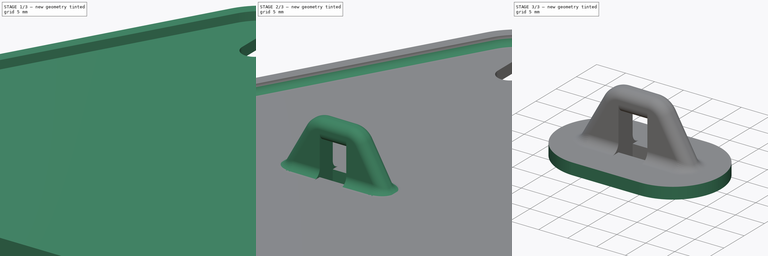
[diagram: build sequence overview — one tinted view per stage of 3, left to right]
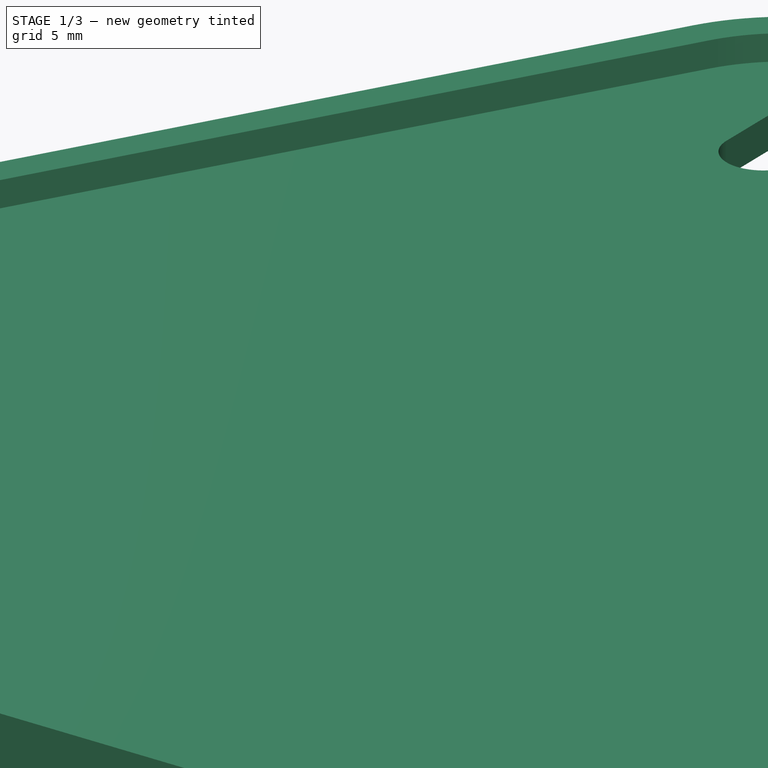
[diagram: stage 1 of 3 — iso view after this stage's code; geometry added in this stage tinted green]
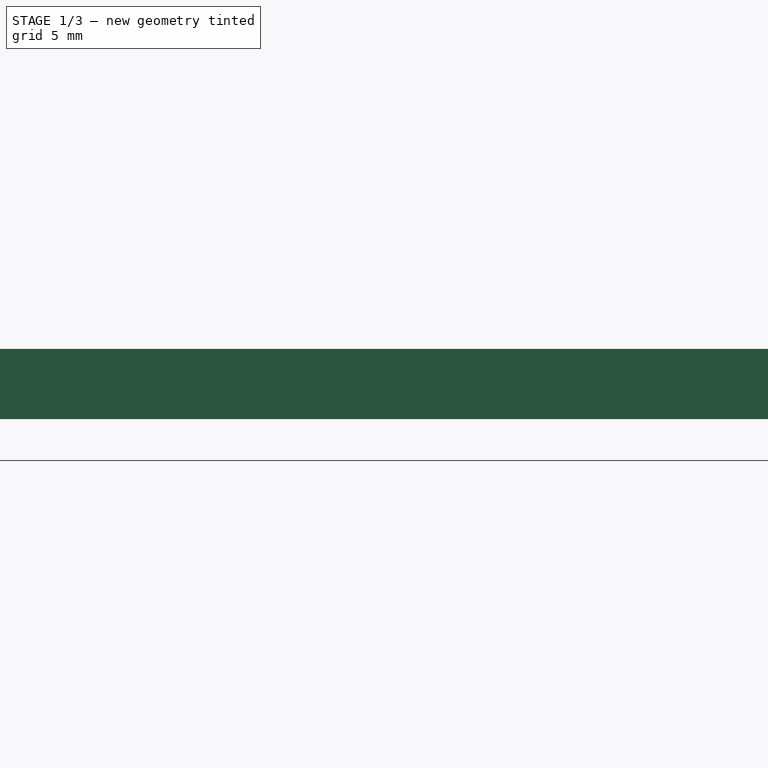
[diagram: stage 1 of 3 — front view after this stage's code; geometry added in this stage tinted green]
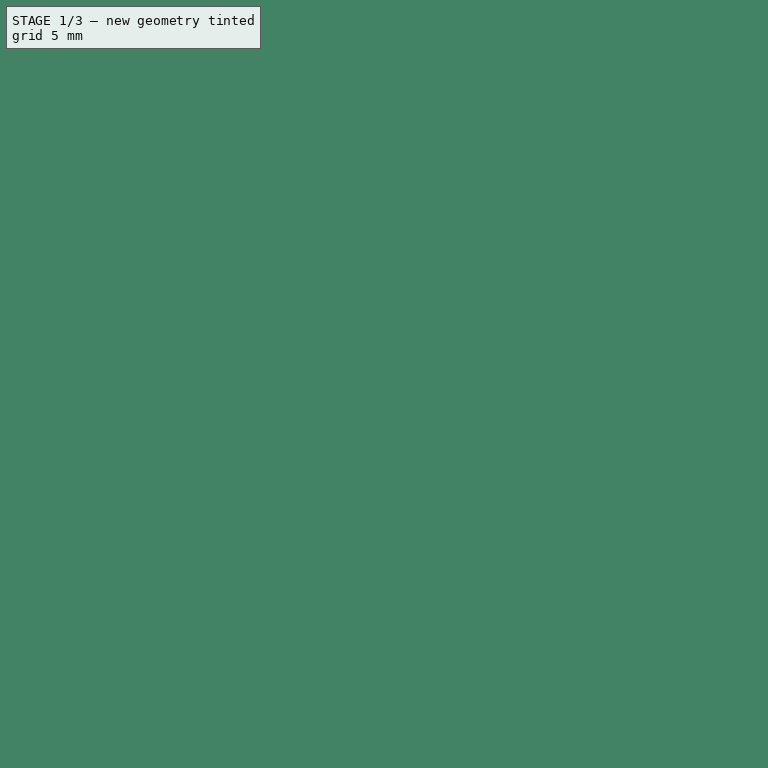
[diagram: stage 1 of 3 — top view after this stage's code; geometry added in this stage tinted green]
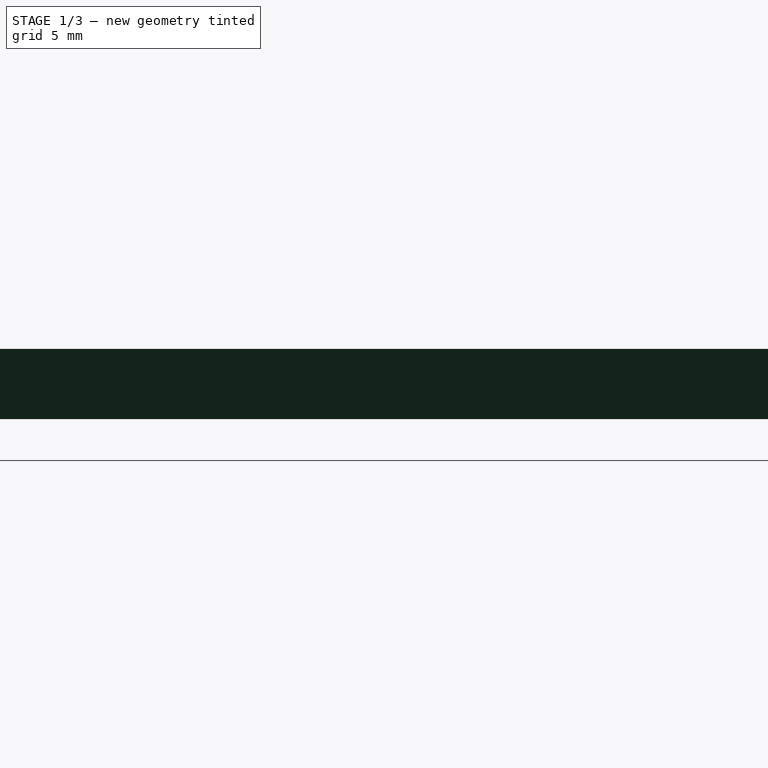
[diagram: stage 1 of 3 — right view after this stage's code; geometry added in this stage tinted green]
FCSTD DOCUMENT  (FreeCAD 0.18.4R)
Label: LivingRoomMainLampAdapter
License: All rights reserved
LicenseURL: http://en.wikipedia.org/wiki/All_rights_reserved
objects: Sketcher::SketchObject×6, PartDesign::Pad×3, PartDesign::Pocket×2, PartDesign::Body×2, PartDesign::Fillet×1, PartDesign::FeatureBase×1
note: 20 computed .brp shape members not serialized (recipe doc carries the construction recipe); baked Part::Feature solids carry a one-line shape summary decoded from their .brp

FEATURE [Sketcher::SketchObject] Sketch  label="LRML_Template"
  MapMode = 5
  Support = -> [XY_Plane]
  expr: Constraints.Rc = Constraints.Ri + Constraints.Dist / 2 + 5mm
  expr: Constraints[84] = Constraints.Rc + 2mm
  sketch-geometry (43):
    g0: LineSegment [constr] StartX=-41.5 StartY=-23.96 StartZ=0 EndX=7.1e-15 EndY=47.9201 EndZ=0
    g1: LineSegment [constr] StartX=3.7e-15 StartY=47.9201 StartZ=0 EndX=41.5 EndY=-23.96 EndZ=0
    g2: LineSegment [constr] StartX=41.5 StartY=-23.96 StartZ=0 EndX=-41.5 EndY=-23.96 EndZ=0
    g3: Circle [constr] CenterX=0 CenterY=0 CenterZ=0 NormalX=0 NormalY=0 NormalZ=1 AngleXU=0 Radius=23.96
    g4: Circle [constr] CenterX=0 CenterY=0 CenterZ=0 NormalX=0 NormalY=0 NormalZ=1 AngleXU=0 Radius=63.5
    g5: LineSegment StartX=-49.554 StartY=-19.31 StartZ=0 EndX=-8.05404 EndY=52.5701 EndZ=0
    g6: LineSegment StartX=8.05404 StartY=52.5701 StartZ=0 EndX=49.554 EndY=-19.31 EndZ=0
    g7: LineSegment StartX=41.5 StartY=-33.26 StartZ=0 EndX=-41.5 EndY=-33.26 EndZ=0
    g8: ArcOfCircle CenterX=-41.5 CenterY=-23.96 CenterZ=0 NormalX=0 NormalY=0 NormalZ=1 AngleXU=0 Radius=9.3 StartAngle=2.61799 EndAngle=4.71239
    g9: ArcOfCircle CenterX=3.7e-15 CenterY=47.9201 CenterZ=0 NormalX=0 NormalY=0 NormalZ=1 AngleXU=0 Radius=9.3 StartAngle=0.523599 EndAngle=2.61799
    g10: ArcOfCircle CenterX=41.5 CenterY=-23.96 CenterZ=0 NormalX=0 NormalY=0 NormalZ=1 AngleXU=0 Radius=9.3 StartAngle=4.71239 EndAngle=6.80678
    g11: LineSegment [constr] StartX=3.7e-15 StartY=47.9201 StartZ=0 EndX=8.05404 EndY=52.5701 EndZ=0
    g12: LineSegment [constr] StartX=3.7e-15 StartY=47.9201 StartZ=0 EndX=-8.05404 EndY=52.5701 EndZ=0
    g13: LineSegment [constr] StartX=41.5 StartY=-23.96 StartZ=0 EndX=49.554 EndY=-19.31 EndZ=0
    g14: LineSegment [constr] StartX=41.5 StartY=-23.96 StartZ=0 EndX=41.5 EndY=-33.26 EndZ=0
    g15: LineSegment [constr] StartX=-41.5 StartY=-23.96 StartZ=0 EndX=-41.5 EndY=-33.26 EndZ=0
    g16: LineSegment [constr] StartX=-49.554 StartY=-19.31 StartZ=0 EndX=-41.5 EndY=-23.96 EndZ=0
    g17: LineSegment StartX=-9.78609 StartY=53.5701 StartZ=0 EndX=-51.2861 EndY=-18.31 EndZ=0
    g18: LineSegment StartX=-41.5 StartY=-35.26 StartZ=0 EndX=41.5 EndY=-35.26 EndZ=0
    g19: LineSegment StartX=51.2861 StartY=-18.31 StartZ=0 EndX=9.78609 EndY=53.5701 EndZ=0
    g20: ArcOfCircle CenterX=3.7e-15 CenterY=47.9201 CenterZ=0 NormalX=0 NormalY=0 NormalZ=1 AngleXU=0 Radius=11.3 StartAngle=0.523599 EndAngle=2.61799
    g21: ArcOfCircle CenterX=41.5 CenterY=-23.96 CenterZ=0 NormalX=0 NormalY=0 NormalZ=1 AngleXU=0 Radius=11.3 StartAngle=4.71239 EndAngle=6.80678
    g22: ArcOfCircle CenterX=-41.5 CenterY=-23.96 CenterZ=0 NormalX=0 NormalY=0 NormalZ=1 AngleXU=0 Radius=11.3 StartAngle=2.61799 EndAngle=4.71239
    g23: ArcOfCircle CenterX=3.8e-15 CenterY=49.9201 CenterZ=0 NormalX=0 NormalY=0 NormalZ=1 AngleXU=0 Radius=2.3 StartAngle=-9e-16 EndAngle=3.14159
    g24: ArcOfCircle CenterX=3.5e-15 CenterY=45.9201 CenterZ=0 NormalX=0 NormalY=0 NormalZ=1 AngleXU=0 Radius=2.3 StartAngle=3.14159 EndAngle=6.28319
    g25: LineSegment StartX=-2.3 StartY=49.9201 StartZ=0 EndX=-2.3 EndY=45.9201 EndZ=0
    g26: LineSegment StartX=2.3 StartY=49.9201 StartZ=0 EndX=2.3 EndY=45.9201 EndZ=0
    g27: LineSegment [constr] StartX=3.8e-15 StartY=49.9201 StartZ=0 EndX=3.5e-15 EndY=45.9201 EndZ=0
    g28: LineSegment [constr] StartX=43.2321 StartY=-24.96 StartZ=0 EndX=39.7679 EndY=-22.96 EndZ=0
    g29: ArcOfCircle CenterX=39.7679 CenterY=-22.96 CenterZ=0 NormalX=0 NormalY=0 NormalZ=1 AngleXU=0 Radius=2.3 StartAngle=1.0472 EndAngle=4.18879
    g30: ArcOfCircle CenterX=43.2321 CenterY=-24.96 CenterZ=0 NormalX=0 NormalY=0 NormalZ=1 AngleXU=0 Radius=2.3 StartAngle=4.18879 EndAngle=7.33038
    g31: LineSegment StartX=40.9179 StartY=-20.9682 StartZ=0 EndX=44.3821 EndY=-22.9682 EndZ=0
    g32: LineSegment StartX=38.6179 StartY=-24.9519 StartZ=0 EndX=42.0821 EndY=-26.9519 EndZ=0
    g33: LineSegment [constr] StartX=-43.2321 StartY=-24.96 StartZ=0 EndX=-39.7679 EndY=-22.96 EndZ=0
    g34: ArcOfCircle CenterX=-39.7679 CenterY=-22.96 CenterZ=0 NormalX=0 NormalY=0 NormalZ=1 AngleXU=0 Radius=2.3 StartAngle=5.23599 EndAngle=8.37758
    g35: ArcOfCircle CenterX=-43.2321 CenterY=-24.96 CenterZ=0 NormalX=0 NormalY=0 NormalZ=1 AngleXU=0 Radius=2.3 StartAngle=2.0944 EndAngle=5.23599
    g36: LineSegment StartX=-44.3821 StartY=-22.9682 StartZ=0 EndX=-40.9179 EndY=-20.9682 EndZ=0
    g37: LineSegment StartX=-42.0821 StartY=-26.9519 StartZ=0 EndX=-38.6179 EndY=-24.9519 EndZ=0
    g38: LineSegment StartX=-2.5 StartY=1.75 StartZ=0 EndX=2.5 EndY=1.75 EndZ=0
    g39: LineSegment StartX=2.5 StartY=1.75 StartZ=0 EndX=2.5 EndY=-1.75 EndZ=0
    g40: LineSegment StartX=2.5 StartY=-1.75 StartZ=0 EndX=-2.5 EndY=-1.75 EndZ=0
    g41: LineSegment StartX=-2.5 StartY=-1.75 StartZ=0 EndX=-2.5 EndY=1.75 EndZ=0
    g42: LineSegment [constr] StartX=-3e-16 StartY=1.75 StartZ=0 EndX=-3e-16 EndY=-1.75 EndZ=0
  constraints (113):
    c: Coincident(g0,g1)
    c: Coincident(g1,g2)
    c: Coincident(g2,g0)
    c: Equal(g0,g2)
    c: Equal(g2,g1)
    c: Distance(g0) = 83
    c: Tangent(g1,g3)
    c: Tangent(g3,g0)
    c: Tangent(g3,g2)
    c: Horizontal(g2)
    c: Coincident(g4,g3)
    c: Diameter(g4) = 127
    c: Coincident(g8,g0)
    c: Coincident(g8,g7)
    c: Coincident(g8,g5)
    c: Coincident(g9,g0)
    c: Coincident(g9,g5)
    c: Coincident(g9,g6)
    c: Coincident(g10,g1)
    c: Coincident(g10,g6)
    c: Coincident(g10,g7)
    c: Coincident(g11,g9)
    c: Coincident(g11,g6)
    c: Coincident(g12,g9)
    c: Coincident(g12,g5)
    c: Coincident(g13,g10)
    c: Coincident(g13,g6)
    c: Coincident(g14,g10)
    c: Coincident(g14,g7)
    c: Coincident(g15,g8)
    c: Coincident(g15,g7)
    c: Coincident(g16,g5)
    c: Coincident(g16,g8)
    c: Equal(g11,g12)
    c: Equal(g12,g13)
    c: Equal(g13,g14)
    c: Equal(g14,g15)
    c: Equal(g15,g16)
    c: Perpendicular(g0,g16)
    c: Perpendicular(g0,g12)
    c: Perpendicular(g1,g11)
    c: Perpendicular(g1,g13)
    c: Perpendicular(g2,g14)
    c: Perpendicular(g2,g15)
    c: Horizontal(g18)
    c: PointOnObject(g19,g11)
    c: PointOnObject(g19,g13)
    c: PointOnObject(g18,g14)
    c: PointOnObject(g18,g15)
    c: PointOnObject(g17,g16)
    c: PointOnObject(g17,g12)
    c: Coincident(g20,g0)
    c: Coincident(g20,g17)
    c: Coincident(g20,g19)
    c: Coincident(g21,g1)
    c: Coincident(g21,g18)
    c: Coincident(g21,g19)
    c: Coincident(g22,g0)
    c: Coincident(g22,g17)
    c: Coincident(g22,g18)
    c: Equal(g20,g21)
    c: Tangent(g23,g26) = 1.5708
    c: Tangent(g23,g25) = -1.5708
    c: Tangent(g25,g24) = -1.5708
    c: Tangent(g26,g24) = 1.5708
    c: Equal(g23,g24)
    c: Coincident(g27,g23)
    c: Coincident(g27,g24)
    c: Symmetric(g24,g23,g0)
    c: Symmetric(g28,g28,g1)
    c: PointOnObject(g3,g28)
    c: Equal(g25,g26)
    c: PointOnObject(g3,g27)
    c: Equal(g27,g28)
    c: Coincident(g29,g28)
    c: Coincident(g30,g28)
    c: Equal(g32,g31)
    c: Tangent(g30,g31) = 1.5708
    c: Tangent(g30,g32) = -1.5708
    c: Tangent(g29,g32) = -1.5708
    c: Tangent(g29,g31) = 1.5708
    c: Equal(g24,g29)
    c: Equal(g29,g30)
    c: Radius(g8) = 9.3  'Rc'
    c: Radius(g22) = 11.3
    c: Symmetric(g33,g33,g0)
    c: PointOnObject(g3,g33)
    c: Equal(g33,g28)
    c: Coincident(g34,g33)
    c: Coincident(g35,g33)
    c: Tangent(g35,g37) = -1.5708
    c: Tangent(g34,g37) = -1.5708
    c: Tangent(g34,g36) = 1.5708
    c: Tangent(g35,g36) = 1.5708
    c: Equal(g35,g34)
    c: Equal(g34,g30)
    c: Coincident(g38,g39)
    c: Coincident(g39,g40)
    c: Coincident(g40,g41)
    c: Coincident(g41,g38)
    c: Horizontal(g38)
    c: Vertical(g39)
    c: Equal(g41,g39)
    c: Equal(g38,g40)
    c: Symmetric(g40,g38,g3)
    c: PointOnObject(g42,g38)
    c: PointOnObject(g42,g40)
    c: Symmetric(g38,g38,g42)
    c: Distance(g41) = 3.5
    c: Coincident(g3,g-1)  '__ANCHOR__'
    c: DistanceX(g38,g38) = 5
    c: Radius(g34) = 2.3  'Ri'
    c: Distance(g37) = 4  'Dist'
FEATURE [Sketcher::SketchObject] Sketch001  label="LRML_Base"
  ExternalGeometry = -> [Sketch]
  MapMode = 5
  Support = -> [XY_Plane]
  sketch-geometry (18):
    g0: ArcOfCircle CenterX=3.8e-15 CenterY=49.9201 CenterZ=0 NormalX=0 NormalY=0 NormalZ=1 AngleXU=0 Radius=2.3 StartAngle=-9e-16 EndAngle=3.14159
    g1: ArcOfCircle CenterX=3.5e-15 CenterY=45.9201 CenterZ=0 NormalX=0 NormalY=0 NormalZ=1 AngleXU=0 Radius=2.3 StartAngle=3.1416 EndAngle=6.28318
    g2: ArcOfCircle CenterX=4.8e-15 CenterY=47.9201 CenterZ=0 NormalX=0 NormalY=0 NormalZ=1 AngleXU=0 Radius=11.3 StartAngle=0.523599 EndAngle=2.61799
    g3: ArcOfCircle CenterX=41.5 CenterY=-23.96 CenterZ=0 NormalX=0 NormalY=0 NormalZ=1 AngleXU=0 Radius=11.3 StartAngle=4.71239 EndAngle=6.80678
    g4: ArcOfCircle CenterX=-41.5 CenterY=-23.96 CenterZ=0 NormalX=0 NormalY=0 NormalZ=1 AngleXU=0 Radius=11.3 StartAngle=2.61799 EndAngle=4.71239
    g5: LineSegment StartX=-9.78609 StartY=53.5701 StartZ=0 EndX=-51.2861 EndY=-18.31 EndZ=0
    g6: LineSegment StartX=-41.5 StartY=-35.26 StartZ=0 EndX=41.5 EndY=-35.26 EndZ=0
    g7: LineSegment StartX=51.2861 StartY=-18.31 StartZ=0 EndX=9.78609 EndY=53.5701 EndZ=0
    g8: LineSegment StartX=-2.3 StartY=49.9201 StartZ=0 EndX=-2.3 EndY=45.9201 EndZ=0
    g9: LineSegment StartX=2.3 StartY=49.9201 StartZ=0 EndX=2.3 EndY=45.9201 EndZ=0
    g10: ArcOfCircle CenterX=43.232 CenterY=-24.96 CenterZ=0 NormalX=0 NormalY=0 NormalZ=1 AngleXU=0 Radius=2.3 StartAngle=4.18879 EndAngle=7.33038
    g11: ArcOfCircle CenterX=39.768 CenterY=-22.96 CenterZ=0 NormalX=0 NormalY=0 NormalZ=1 AngleXU=0 Radius=2.3 StartAngle=1.0472 EndAngle=4.18879
    g12: ArcOfCircle CenterX=-43.232 CenterY=-24.96 CenterZ=0 NormalX=0 NormalY=0 NormalZ=1 AngleXU=0 Radius=2.3 StartAngle=2.0944 EndAngle=5.23598
    g13: ArcOfCircle CenterX=-39.768 CenterY=-22.96 CenterZ=0 NormalX=0 NormalY=0 NormalZ=1 AngleXU=0 Radius=2.3 StartAngle=5.23599 EndAngle=8.37758
    g14: LineSegment StartX=-42.0821 StartY=-26.9519 StartZ=0 EndX=-38.6179 EndY=-24.9519 EndZ=0
    g15: LineSegment StartX=-40.9179 StartY=-20.9682 StartZ=0 EndX=-44.3821 EndY=-22.9682 EndZ=0
    g16: LineSegment StartX=40.9179 StartY=-20.9682 StartZ=0 EndX=44.3821 EndY=-22.9682 EndZ=0
    g17: LineSegment StartX=38.6179 StartY=-24.9519 StartZ=0 EndX=42.0821 EndY=-26.9519 EndZ=0
  constraints (45):
    c: Coincident(g0,g-10)
    c: Coincident(g0,g-10)
    c: Coincident(g0,g-10)
    c: Coincident(g1,g-11)
    c: Coincident(g1,g-11)
    c: Equal(g1,g-11)
    c: Coincident(g2,g-3)
    c: Coincident(g2,g-3)
    c: Equal(g2,g-3)
    c: Coincident(g3,g-4)
    c: Coincident(g3,g-4)
    c: Equal(g3,g-4)
    c: Coincident(g4,g-5)
    c: Coincident(g4,g-5)
    c: Equal(g4,g-5)
    c: Coincident(g5,g2)
    c: Coincident(g5,g4)
    c: Coincident(g6,g4)
    c: Coincident(g6,g3)
    c: Coincident(g7,g3)
    c: Coincident(g7,g2)
    c: Coincident(g8,g0)
    c: Coincident(g8,g1)
    c: Coincident(g9,g0)
    c: Coincident(g9,g1)
    c: Coincident(g10,g-9)
    c: Coincident(g10,g-9)
    c: Equal(g10,g-9)
    c: Coincident(g11,g-8)
    c: Coincident(g11,g-8)
    c: Coincident(g12,g-6)
    c: Coincident(g12,g-6)
    c: Coincident(g13,g-7)
    c: Coincident(g13,g-7)
    c: Equal(g13,g-7)
    c: Equal(g12,g-6)
    c: Equal(g11,g-8)
    c: Coincident(g14,g12)
    c: Coincident(g14,g13)
    c: Coincident(g15,g13)
    c: Coincident(g15,g12)
    c: Coincident(g16,g11)
    c: Coincident(g16,g10)
    c: Coincident(g17,g11)
    c: Coincident(g17,g10)
FEATURE [PartDesign::Pad] Pad  label="LRML_Base_"
  Length = 2
  Length2 = 100
  Profile = -> Sketch001
  Type = 0
FEATURE [Sketcher::SketchObject] Sketch002  label="LRML_Verge"
  AttachmentOffset = pos=(0,0,2) rot=(0,0,1;0rad)
  ExternalGeometry = -> [Sketch]
  MapMode = 5
  Placement = pos=(0,0,2) rot=(0,0,1;0rad)
  Support = -> [XY_Plane]
  expr: AttachmentOffset.Base.z = LRML_Base.Placement.Base.z + LRML_Base_.Length
  sketch-geometry (12):
    g0: ArcOfCircle CenterX=-41.5 CenterY=-23.96 CenterZ=0 NormalX=0 NormalY=0 NormalZ=1 AngleXU=0 Radius=9.3 StartAngle=2.61799 EndAngle=4.71239
    g1: ArcOfCircle CenterX=-41.5 CenterY=-23.96 CenterZ=0 NormalX=0 NormalY=0 NormalZ=1 AngleXU=0 Radius=11.3 StartAngle=2.61799 EndAngle=4.71239
    g2: ArcOfCircle CenterX=41.5 CenterY=-23.96 CenterZ=0 NormalX=0 NormalY=0 NormalZ=1 AngleXU=0 Radius=9.3 StartAngle=4.71239 EndAngle=6.80678
    g3: ArcOfCircle CenterX=41.5 CenterY=-23.96 CenterZ=0 NormalX=0 NormalY=0 NormalZ=1 AngleXU=0 Radius=11.3 StartAngle=4.71239 EndAngle=6.80678
    g4: ArcOfCircle CenterX=2.4e-15 CenterY=47.9201 CenterZ=0 NormalX=0 NormalY=0 NormalZ=1 AngleXU=0 Radius=9.3 StartAngle=0.523599 EndAngle=2.61799
    g5: ArcOfCircle CenterX=3e-15 CenterY=47.9201 CenterZ=0 NormalX=0 NormalY=0 NormalZ=1 AngleXU=0 Radius=11.3 StartAngle=0.523599 EndAngle=2.61799
    g6: LineSegment StartX=-9.78609 StartY=53.5701 StartZ=0 EndX=-51.2861 EndY=-18.31 EndZ=0
    g7: LineSegment StartX=-49.554 StartY=-19.31 StartZ=0 EndX=-8.05404 EndY=52.5701 EndZ=0
    g8: LineSegment StartX=9.78609 StartY=53.5701 StartZ=0 EndX=51.2861 EndY=-18.31 EndZ=0
    g9: LineSegment StartX=49.554 StartY=-19.31 StartZ=0 EndX=8.05404 EndY=52.5701 EndZ=0
    g10: LineSegment StartX=-41.5 StartY=-33.26 StartZ=0 EndX=41.5 EndY=-33.26 EndZ=0
    g11: LineSegment StartX=41.5 StartY=-35.26 StartZ=0 EndX=-41.5 EndY=-35.26 EndZ=0
  constraints (30):
    c: Coincident(g0,g-6)
    c: Coincident(g0,g-5)
    c: Coincident(g0,g-5)
    c: Coincident(g1,g0)
    c: Coincident(g1,g-6)
    c: Coincident(g1,g-6)
    c: Coincident(g2,g-7)
    c: Coincident(g2,g-7)
    c: Equal(g2,g-7)
    c: Coincident(g3,g-8)
    c: Coincident(g3,g-8)
    c: Equal(g3,g-8)
    c: Coincident(g4,g-4)
    c: Coincident(g4,g-4)
    c: Coincident(g5,g-3)
    c: Coincident(g5,g-3)
    c: Equal(g5,g-3)
    c: Equal(g4,g-4)
    c: Coincident(g6,g5)
    c: Coincident(g6,g1)
    c: Coincident(g7,g0)
    c: Coincident(g7,g4)
    c: Coincident(g8,g5)
    c: Coincident(g8,g3)
    c: Coincident(g9,g2)
    c: Coincident(g9,g4)
    c: Coincident(g10,g0)
    c: Coincident(g10,g2)
    c: Coincident(g11,g3)
    c: Coincident(g11,g1)
FEATURE [PartDesign::Pad] Pad001  label="LRML_Verge_"
  BaseFeature = -> Pad
  Length = 1.6
  Length2 = 100
  Profile = -> Sketch002
  Refine = true
  Type = 0
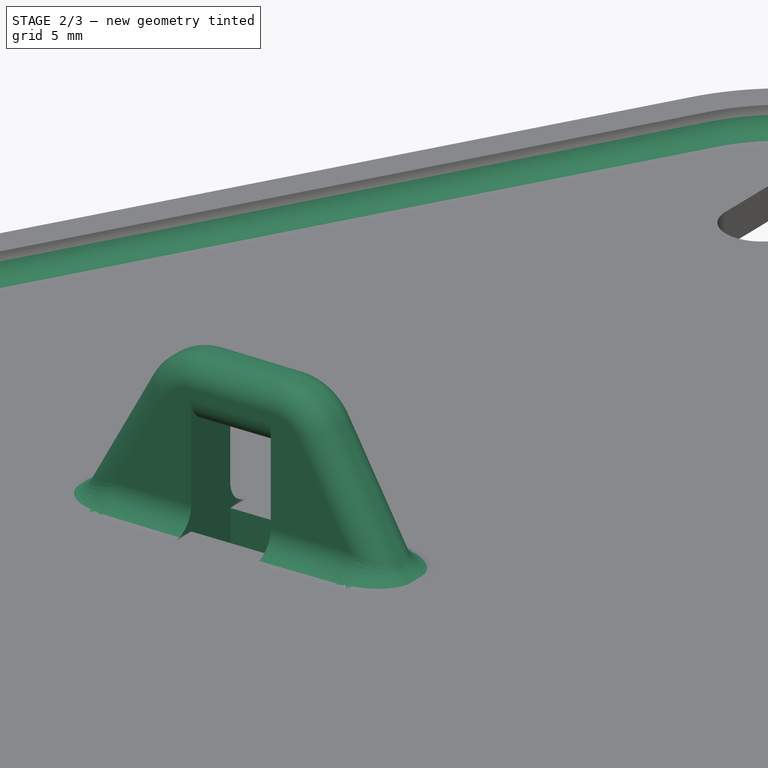
[diagram: stage 2 of 3 — iso view after this stage's code; geometry added in this stage tinted green]
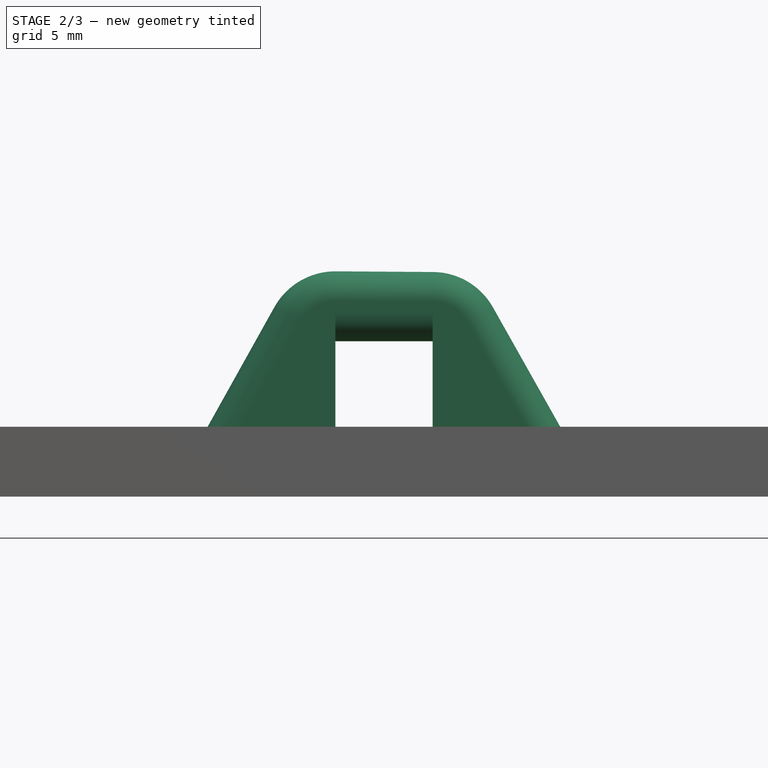
[diagram: stage 2 of 3 — front view after this stage's code; geometry added in this stage tinted green]
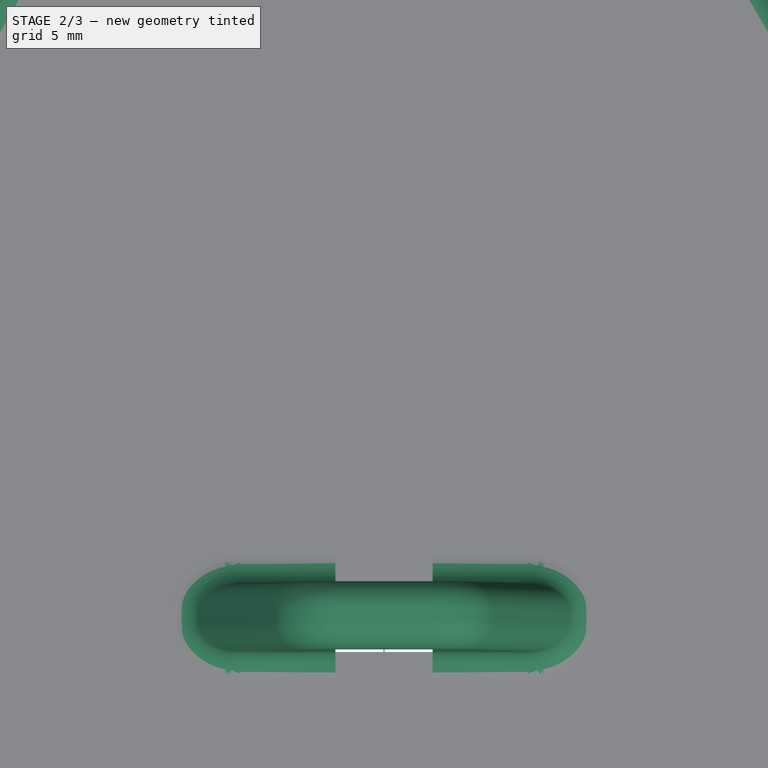
[diagram: stage 2 of 3 — top view after this stage's code; geometry added in this stage tinted green]
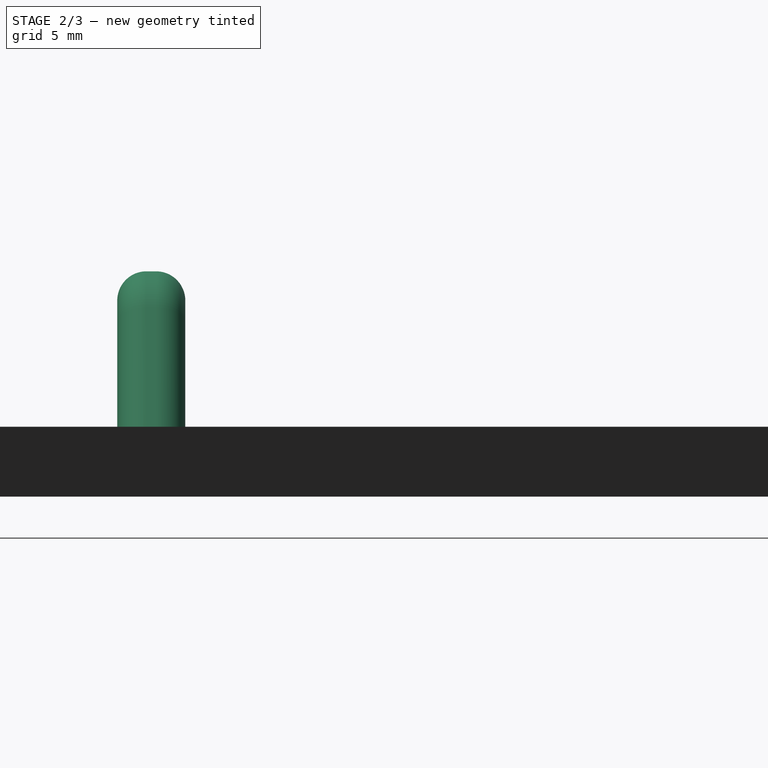
[diagram: stage 2 of 3 — right view after this stage's code; geometry added in this stage tinted green]
FEATURE [Sketcher::SketchObject] Sketch003  label="Hook"
  AttachmentOffset = pos=(0,2,0) rot=(0,0,1;0rad)
  ExternalGeometry = -> [Sketch]
  MapMode = 5
  Placement = pos=(0,4e-16,2) rot=(1,0,0;1.5708rad)
  Support = -> [XZ_Plane]
  sketch-geometry (13):
    g0: LineSegment [constr] StartX=-2.5 StartY=1.36453e-11 StartZ=0 EndX=2.5 EndY=1.36453e-11 EndZ=0
    g1: LineSegment StartX=2.5 StartY=1.36453e-11 StartZ=0 EndX=2.5 EndY=6 EndZ=0
    g2: LineSegment StartX=2.5 StartY=6 StartZ=0 EndX=-2.5 EndY=6 EndZ=0
    g3: LineSegment StartX=-2.5 StartY=6 StartZ=0 EndX=-2.5 EndY=1.36451e-11 EndZ=0
    g4: Circle [constr] CenterX=-2.5 CenterY=6 CenterZ=0 NormalX=0 NormalY=0 NormalZ=1 AngleXU=0 Radius=3.6
    g5: Circle [constr] CenterX=2.5 CenterY=6 CenterZ=0 NormalX=0 NormalY=0 NormalZ=1 AngleXU=0 Radius=3.56453
    g6: LineSegment StartX=-2.47446 StartY=9.59991 StartZ=0 EndX=2.52529 EndY=9.56444 EndZ=0
    g7: LineSegment StartX=-2.5 StartY=1.36453e-11 StartZ=0 EndX=-9.97155 EndY=1.36453e-11 EndZ=0
    g8: LineSegment StartX=2.5 StartY=1.36453e-11 StartZ=0 EndX=9.97155 EndY=1.36453e-11 EndZ=0
    g9: LineSegment StartX=-9.97155 StartY=1.36453e-11 StartZ=0 EndX=-5.64352 EndY=7.7545 EndZ=0
    g10: LineSegment StartX=9.97155 StartY=1.36453e-11 StartZ=0 EndX=5.60559 EndY=7.74962 EndZ=0
    g11: ArcOfCircle CenterX=-2.5 CenterY=6 CenterZ=0 NormalX=0 NormalY=0 NormalZ=1 AngleXU=0 Radius=3.6 StartAngle=1.5637 EndAngle=2.63253
    g12: ArcOfCircle CenterX=2.5 CenterY=6 CenterZ=0 NormalX=0 NormalY=0 NormalZ=1 AngleXU=0 Radius=3.56453 StartAngle=0.513055 EndAngle=1.5637
  constraints (32):
    c: Coincident(g0,g1)
    c: Coincident(g1,g2)
    c: Coincident(g2,g3)
    c: Coincident(g3,g0)
    c: Horizontal(g0)
    c: Horizontal(g2)
    c: Vertical(g1)
    c: Vertical(g3)
    c: DistanceY(g3,g3) = 6
    c: PointOnObject(g0,g-1)
    c: PointOnObject(g-3,g3)
    c: PointOnObject(g-3,g1)
    c: Coincident(g4,g2)
    c: Coincident(g5,g1)
    c: Radius(g4) = 3.6
    c: Coincident(g7,g0)
    c: Horizontal(g7)
    c: Coincident(g8,g0)
    c: Horizontal(g8)
    c: Equal(g8,g7)
    c: Coincident(g9,g7)
    c: Tangent(g9,g4) = 1.5708
    c: Coincident(g10,g8)
    c: Tangent(g10,g5) = -1.5708
    c: Tangent(g6,g4) = 1.5708
    c: Tangent(g6,g5) = 1.5708
    c: Coincident(g11,g2)
    c: Coincident(g11,g9)
    c: Coincident(g11,g6)
    c: Coincident(g12,g1)
    c: Coincident(g12,g6)
    c: Coincident(g12,g10)
FEATURE [PartDesign::Pad] Pad002  label="Hook_"
  BaseFeature = -> Pad001
  Length = 3.5
  Length2 = 100
  Midplane = true
  Profile = -> Sketch003
  Type = 0
FEATURE [Sketcher::SketchObject] Sketch004
  MapMode = 5
  Support = -> [XY_Plane001]
  sketch-geometry (8):
    g0: LineSegment StartX=-61.0054 StartY=61.0054 StartZ=0 EndX=61.0054 EndY=61.0054 EndZ=0
    g1: LineSegment StartX=61.0054 StartY=61.0054 StartZ=0 EndX=61.0054 EndY=-61.0054 EndZ=0
    g2: LineSegment StartX=61.0054 StartY=-61.0054 StartZ=0 EndX=-61.0054 EndY=-61.0054 EndZ=0
    g3: LineSegment StartX=-61.0054 StartY=-61.0054 StartZ=0 EndX=-61.0054 EndY=61.0054 EndZ=0
    g4: ArcOfCircle CenterX=-5.70249 CenterY=0 CenterZ=0 NormalX=0 NormalY=0 NormalZ=1 AngleXU=0 Radius=8.28295 StartAngle=1.5708 EndAngle=4.71239
    g5: ArcOfCircle CenterX=5.70249 CenterY=0 CenterZ=0 NormalX=0 NormalY=0 NormalZ=1 AngleXU=0 Radius=8.28295 StartAngle=4.71239 EndAngle=7.85398
    g6: LineSegment StartX=-5.7025 StartY=-8.28295 StartZ=0 EndX=5.70249 EndY=-8.28295 EndZ=0
    g7: LineSegment StartX=-5.7025 StartY=8.28295 StartZ=0 EndX=5.7025 EndY=8.28295 EndZ=0
  constraints (17):
    c: Coincident(g0,g1)
    c: Coincident(g1,g2)
    c: Coincident(g2,g3)
    c: Coincident(g3,g0)
    c: Horizontal(g0)
    c: Horizontal(g2)
    c: Vertical(g1)
    c: Vertical(g3)
    c: Tangent(g4,g7) = 1.5708
    c: Tangent(g4,g6) = -1.5708
    c: Tangent(g6,g5) = -1.5708
    c: Tangent(g7,g5) = 1.5708
    c: Horizontal(g6)
    c: Equal(g4,g5)
    c: Symmetric(g4,g5,g-1)
    c: Symmetric(g0,g1,g-1)
    c: Equal(g0,g3)
FEATURE [PartDesign::Fillet] Fillet
  Base = -> Pad002 [Edge73,Edge68,Edge67,Edge74,Edge69,Edge72,Edge61,Edge95,Edge86,Edge82,Edge92]
  BaseFeature = -> Pad002
  Radius = 1.5
FEATURE [Sketcher::SketchObject] Sketch005
  AttachmentOffset = pos=(0,0,2) rot=(0,0,1;0rad)
  ExternalGeometry = -> [Sketch]
  MapMode = 5
  Placement = pos=(0,0,2) rot=(0,0,1;0rad)
  Support = -> [XY_Plane]
  expr: AttachmentOffset.Base.z = LRML_Verge.Placement.Base.z
  sketch-geometry (4):
    g0: LineSegment StartX=-2.5 StartY=1.75 StartZ=0 EndX=2.5 EndY=1.75 EndZ=0
    g1: LineSegment StartX=2.5 StartY=1.75 StartZ=0 EndX=2.5 EndY=-1.75 EndZ=0
    g2: LineSegment StartX=2.5 StartY=-1.75 StartZ=0 EndX=-2.5 EndY=-1.75 EndZ=0
    g3: LineSegment StartX=-2.5 StartY=-1.75 StartZ=0 EndX=-2.5 EndY=1.75 EndZ=0
  constraints (10):
    c: Coincident(g0,g1)
    c: Coincident(g1,g2)
    c: Coincident(g2,g3)
    c: Coincident(g3,g0)
    c: Horizontal(g0)
    c: Horizontal(g2)
    c: Vertical(g1)
    c: Vertical(g3)
    c: Coincident(g0,g-3)
    c: Coincident(g1,g-4)
FEATURE [PartDesign::Pocket] Pocket001
  BaseFeature = -> Fillet
  Length = 5
  Length2 = 100
  Profile = -> Sketch005
  Refine = true
  Type = 2
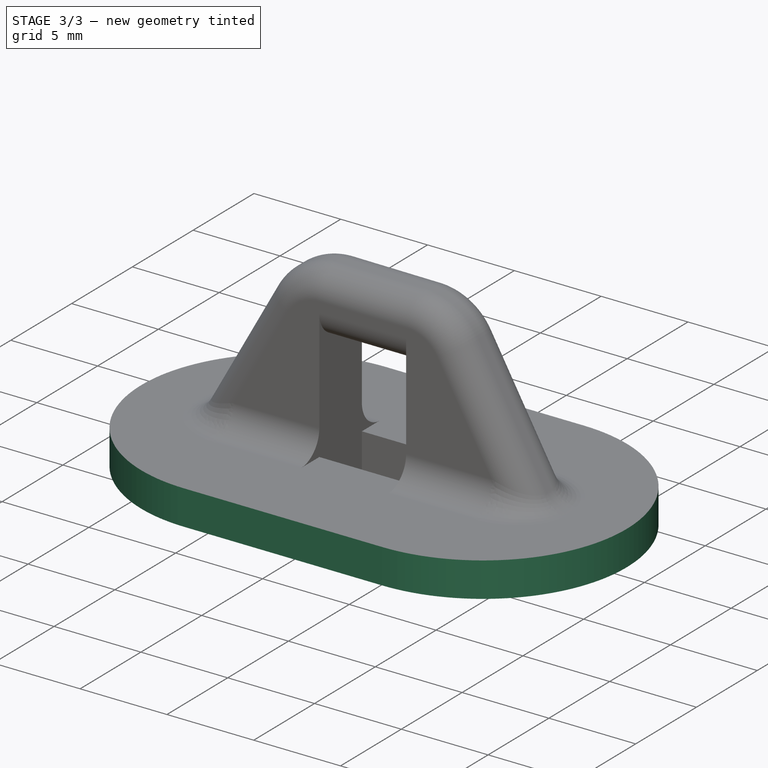
[diagram: stage 3 of 3 — iso view after this stage's code; geometry added in this stage tinted green]
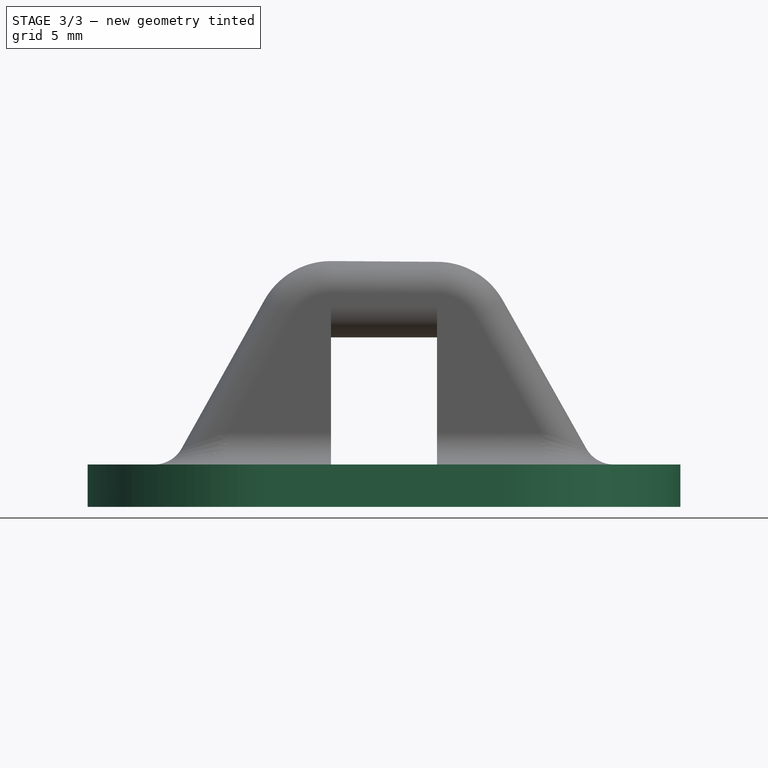
[diagram: stage 3 of 3 — front view after this stage's code; geometry added in this stage tinted green]
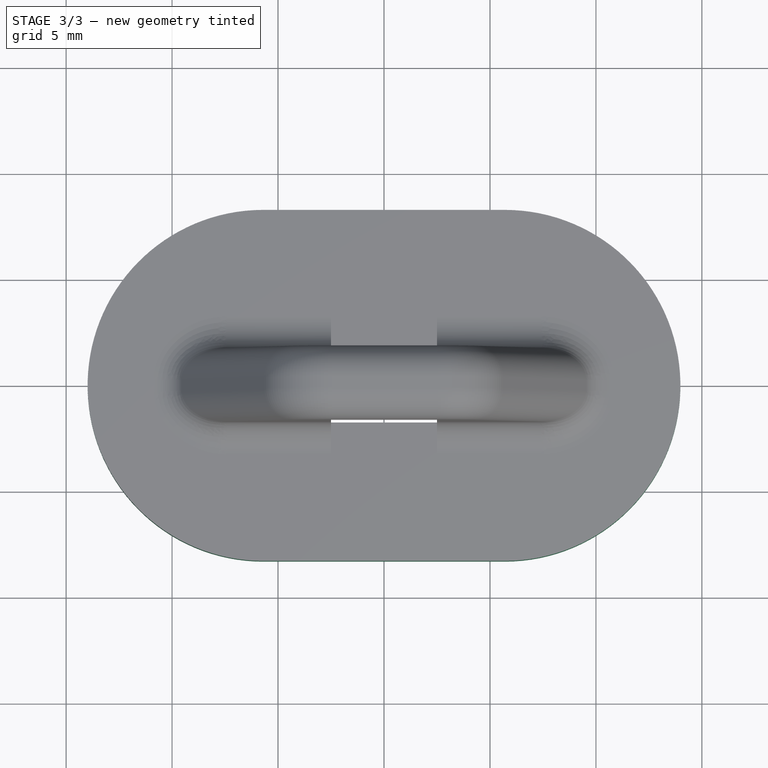
[diagram: stage 3 of 3 — top view after this stage's code; geometry added in this stage tinted green]
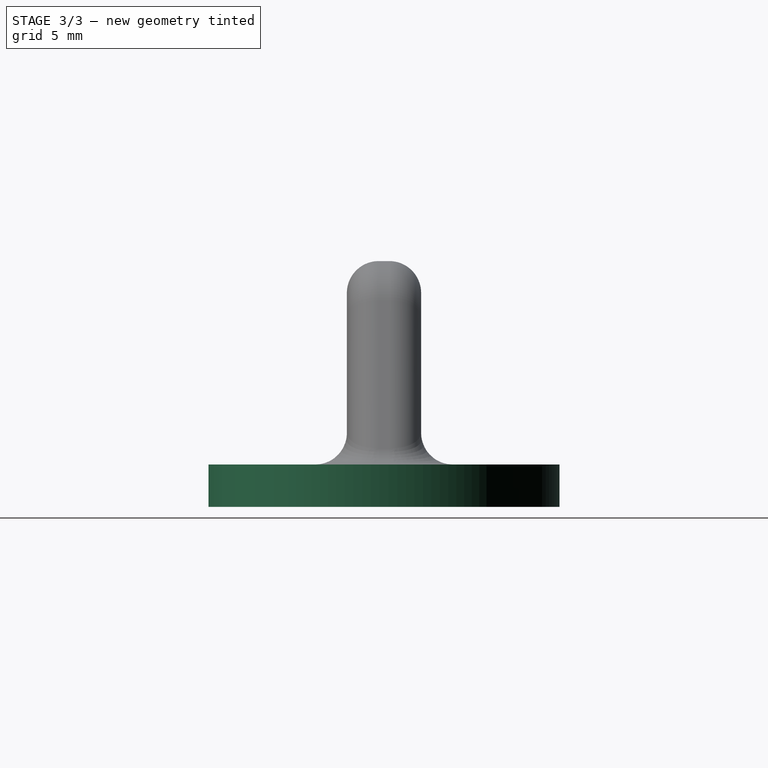
[diagram: stage 3 of 3 — right view after this stage's code; geometry added in this stage tinted green]
FEATURE [PartDesign::Body] Body  label="LivingRoomMainLampAdapter"
  Group = -> [Sketch,Sketch001,Pad,Sketch002,Pad001,Sketch003,Pad002,Fillet,Sketch005,Pocket001]
  Origin = -> Origin
  Tip = -> Pocket001
FEATURE [PartDesign::FeatureBase] Clone
  BaseFeature = -> Body
FEATURE [PartDesign::Pocket] Pocket
  BaseFeature = -> Clone
  Length = 5
  Length2 = 100
  Midplane = true
  Profile = -> Sketch004
  Type = 1
FEATURE [PartDesign::Body] Body001  label="HookTest"
  Group = -> [Clone,Sketch004,Pocket]
  Origin = -> Origin001
  Tip = -> Pocket
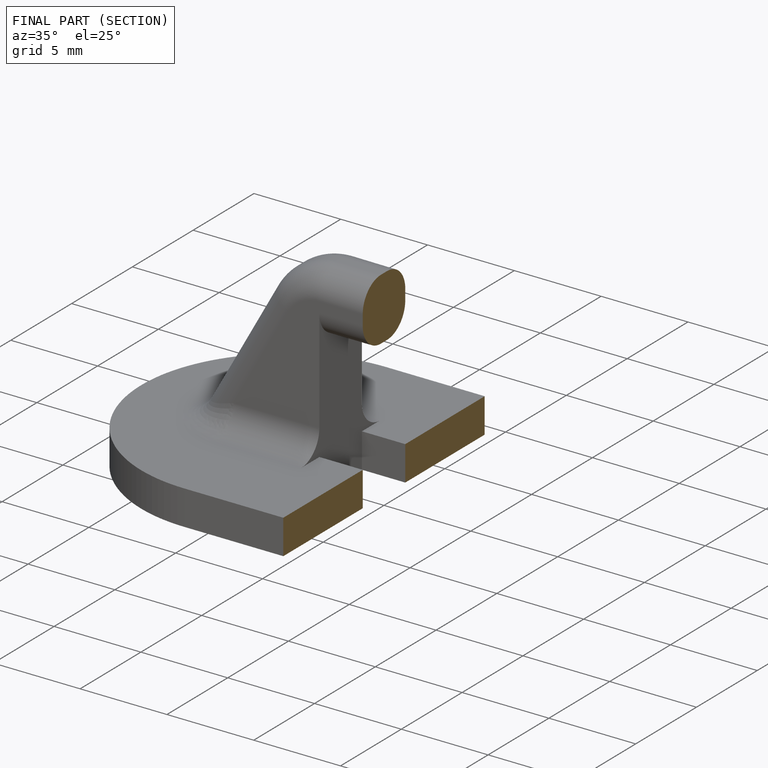
[diagram: finished part — half-section view (interior)]
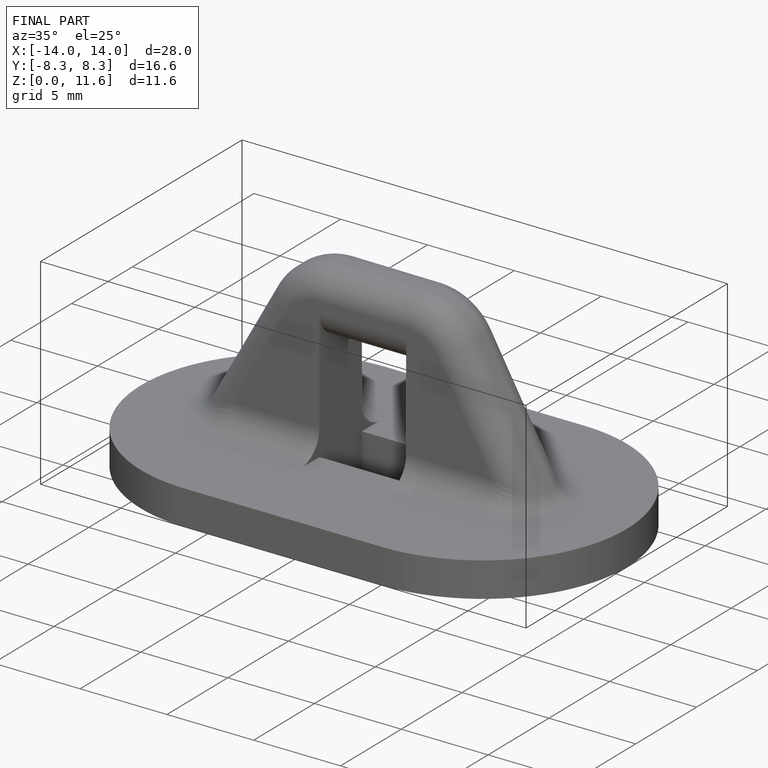
[diagram: finished part — iso view with bounding-box wireframe]
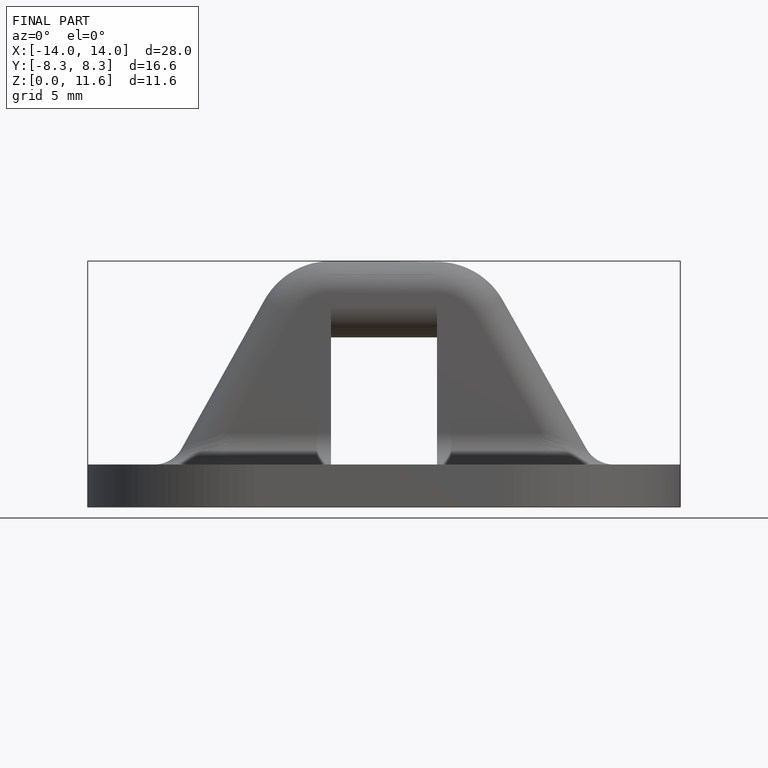
[diagram: finished part — front view with bounding-box wireframe]
